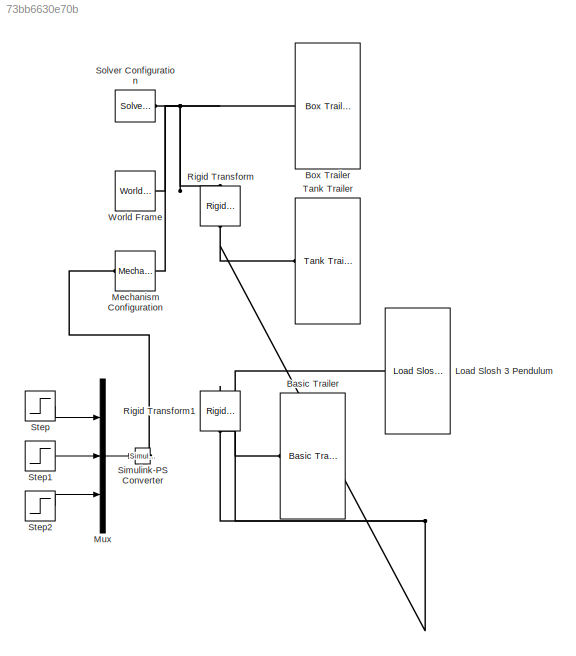
MODEL slx_73bb6630e70b
KIND model
CONFIG AbsTol = auto
CONFIG EnableMultiTasking = on
CONFIG FixedStep = auto
CONFIG MaxStep = auto
CONFIG MinStep = auto
CONFIG RelTol = 1e-3
CONFIG SampleTimeConstraint = Unconstrained
CONFIG SolverName = VariableStepAuto
CONFIG StartTime = 0.0
CONFIG StopTime = 30
BLOCK [Reference] Basic Trailer  REF=BodyGeometry_Basic_Trailer/Basic Trailer
  Ports = [0, 0, 0, 0, 0, 1]
  SourceBlock = BodyGeometry_Basic_Trailer/Basic Trailer
  SourceType = Basic Box Trailer Geometry
BLOCK [Reference] Box Trailer  REF=BodyGeometry_Box_Trailer/Box Trailer
  Ports = [0, 0, 0, 0, 0, 1]
  SourceBlock = BodyGeometry_Box_Trailer/Box Trailer
  SourceType = Box Trailer Geometry
BLOCK [Reference] Load Slosh 3 Pendulum  REF=BodyLoad_Slosh_Pend3/Load Slosh 3 Pendulum
  Ports = [0, 0, 0, 0, 0, 1]
  SourceBlock = BodyLoad_Slosh_Pend3/Load Slosh 3 Pendulum
  SourceType = Three Pendulum Inertial Load
BLOCK [Reference] Mechanism Configuration  REF=sm_lib/Utilities/Mechanism
Configuration
  Ports = [0, 0, 0, 0, 0, 1, 1]
  SourceBlock = sm_lib/Utilities/Mechanism\nConfiguration
  SourceProductBaseCode = MS
  SourceType = Mechanism\nConfiguration
BLOCK [Mux] Mux
  DisplayOption = bar
  Inputs = 3
  Ports = [3, 1]
BLOCK [Reference] Rigid Transform  REF=sm_lib/Frames and
Transforms/Rigid
Transform
  NameLocation = left
  Ports = [0, 0, 0, 0, 0, 1, 1]
  SourceBlock = sm_lib/Frames and\nTransforms/Rigid\nTransform
  SourceProductBaseCode = MS
  SourceType = Rigid\nTransform
BLOCK [Reference] Rigid Transform1  REF=sm_lib/Frames and
Transforms/Rigid
Transform
  NameLocation = left
  Ports = [0, 0, 0, 0, 0, 1, 1]
  SourceBlock = sm_lib/Frames and\nTransforms/Rigid\nTransform
  SourceProductBaseCode = MS
  SourceType = Rigid\nTransform
BLOCK [Reference] Simulink-PS Converter  REF=nesl_utility/Simulink-PS
Converter
  Ports = [1, 0, 0, 0, 0, 0, 1]
  SourceBlock = nesl_utility/Simulink-PS\nConverter
  SourceProductBaseCode = SS,PW,VE
  SourceType = Simulink-PS\nConverter
BLOCK [Reference] Solver Configuration  REF=nesl_utility/Solver
Configuration
  Ports = [0, 0, 0, 0, 0, 0, 1]
  SourceBlock = nesl_utility/Solver\nConfiguration
  SourceProductBaseCode = SS,PW,VE
  SourceType = Solver\nConfiguration
BLOCK [Step] Step
  After = -1
  SampleTime = 0
  Time = 5
BLOCK [Step] Step1
  After = 0.5
  SampleTime = 0
  Time = 15
BLOCK [Step] Step2
  After = -0.5
  Before = -1
  SampleTime = 0
  Time = 5
BLOCK [Reference] Tank Trailer  REF=BodyGeometry_Tank_Trailer/Tank Trailer
  Ports = [0, 0, 0, 0, 0, 1]
  SourceBlock = BodyGeometry_Tank_Trailer/Tank Trailer
  SourceType = Cylindrical Tanker Trailer Geometry
BLOCK [Reference] World Frame  REF=sm_lib/Frames and
Transforms/World Frame
  Ports = [0, 0, 0, 0, 0, 0, 1]
  SourceBlock = sm_lib/Frames and\nTransforms/World Frame
  SourceProductBaseCode = MS
  SourceType = World Frame
LINE Mux:1 -> Simulink-PS Converter:1
LINE Step1:1 -> Mux:2
LINE Step2:1 -> Mux:3
LINE Step:1 -> Mux:1
PLINE Basic Trailer:LConn1 -- Rigid Transform1:RConn1
PNET net1: Box Trailer:LConn1 -- Mechanism Configuration:RConn1 -- Rigid Transform:LConn1 -- Solver Configuration:RConn1 -- World Frame:RConn1
PNET net2: Load Slosh 3 Pendulum:LConn1 -- Rigid Transform1:LConn1 -- Rigid Transform:RConn1 -- Tank Trailer:LConn1
PLINE Mechanism Configuration:LConn1 -- Simulink-PS Converter:RConn1
note: PNET lines group multi-terminal physical nets as a canonical sorted terminal list (undirected conserving connections); 2-terminal nets keep the pairwise PLINE form
